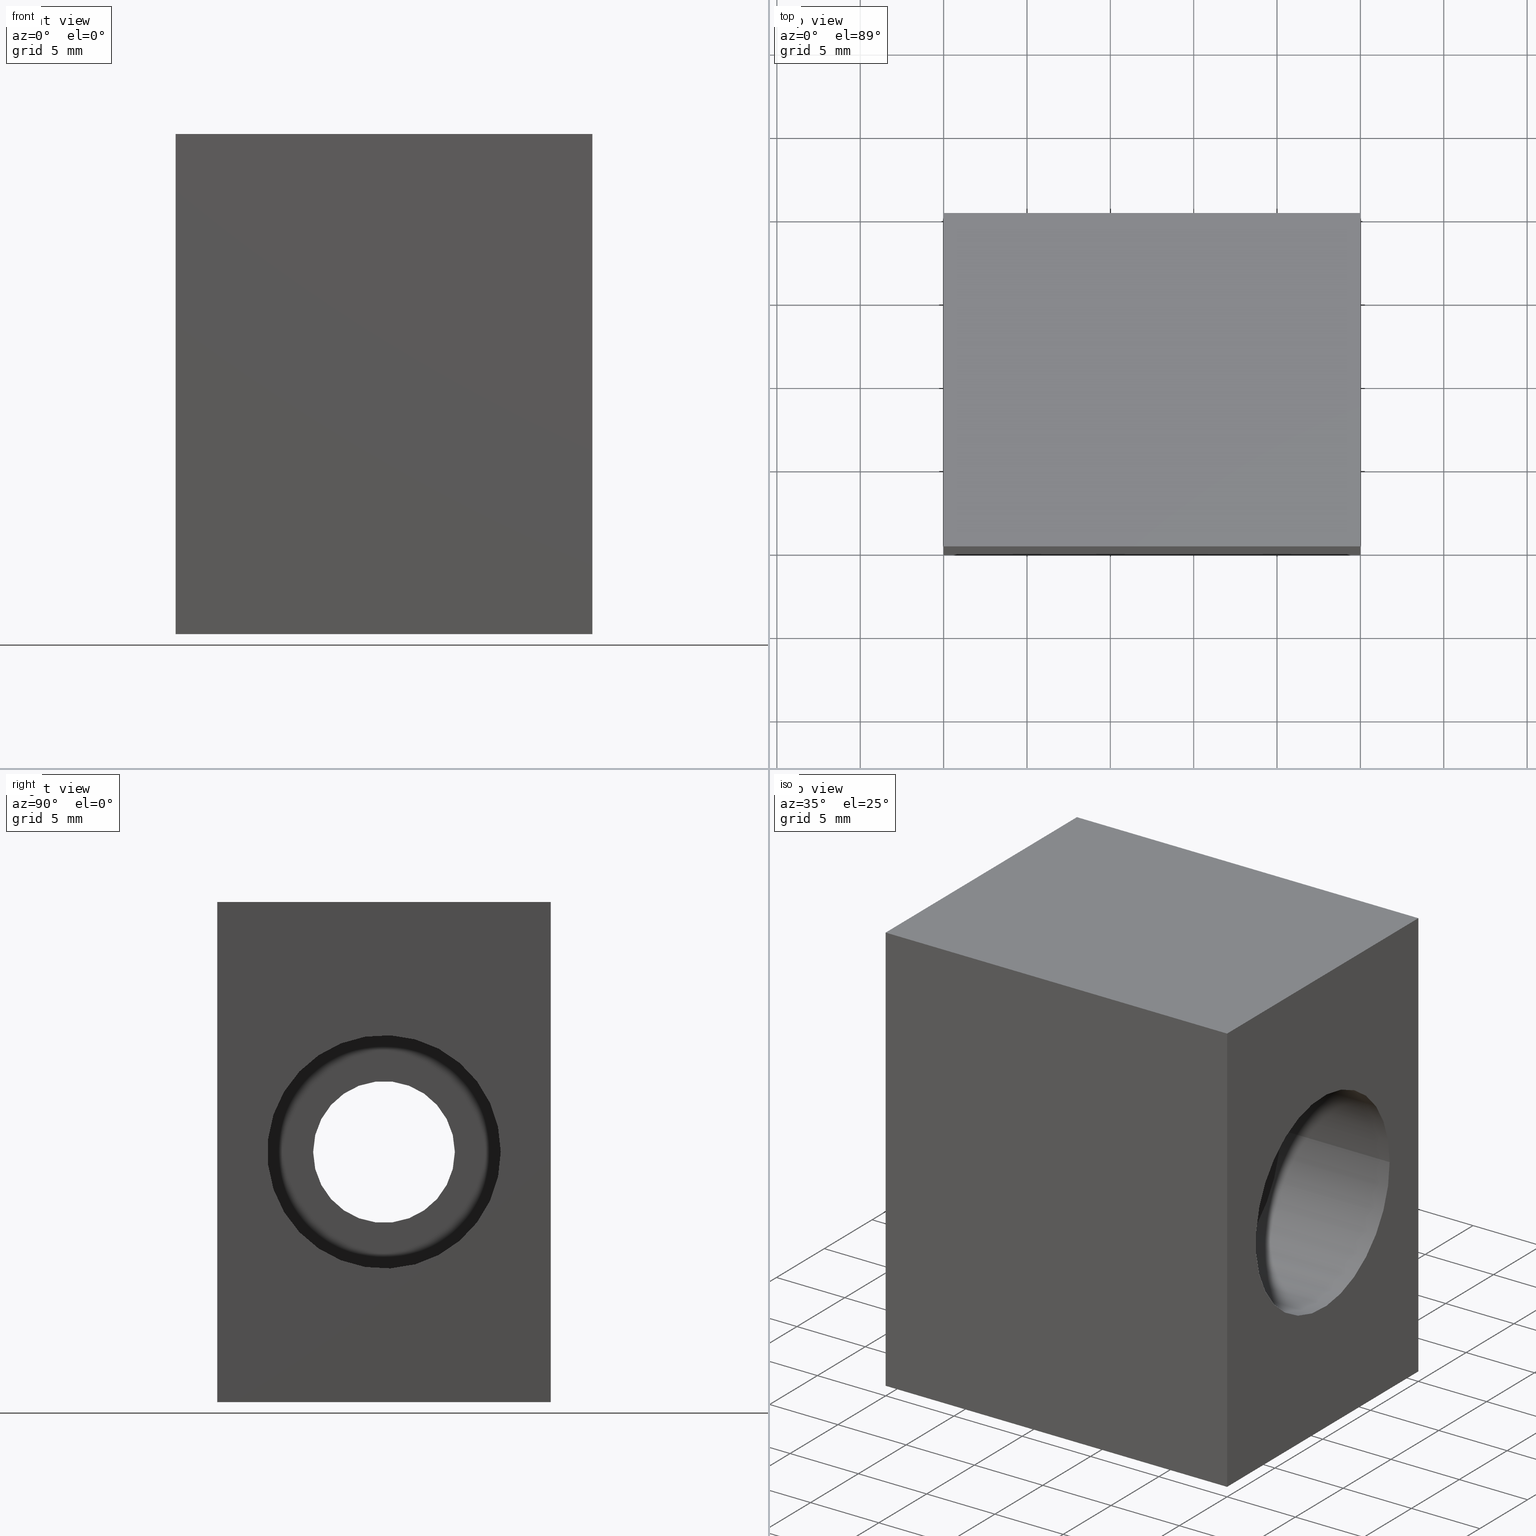
[diagram: canonical four-view strip — front | top / right | iso, engineering-drawing reading convention]
A machine part, canonical four-view strip (front | top / right | iso — engineering-drawing reading convention). The complete STEP part file that produces these views, byte-faithful:
ISO-10303-21;
HEADER;
/* Generated by software containing ST-Developer
 * from STEP Tools, Inc. (www.steptools.com) 
 */

FILE_DESCRIPTION(
/* description */ ('RISCONTRO MAGNETE PORTA ANTA PERIMETRALE'),
/* implementation_level */ '2;1');

FILE_NAME(
/* name */ 
'C:\\Users\\tecnico7\\Desktop\\NUOVI DISEGNI 3D\\DMGRT0000005.stp',
/* time_stamp */ '2022-11-24T08:28:23+01:00',
/* author */ ('tecnico7'),
/* organization */ (''),
/* preprocessor_version */ 'ST-DEVELOPER v18.1',
/* originating_system */ 'Autodesk Inventor 2022',
/* authorisation */ '');

FILE_SCHEMA (('AUTOMOTIVE_DESIGN { 1 0 10303 214 3 1 1 }'));
ENDSEC;

DATA;
#10=MECHANICAL_DESIGN_GEOMETRIC_PRESENTATION_REPRESENTATION('',(#13),#276);
#11=SHAPE_REPRESENTATION_RELATIONSHIP('SRR','None',#283,#12);
#12=ADVANCED_BREP_SHAPE_REPRESENTATION('',(#14),#275);
#13=STYLED_ITEM('',(#292),#14);
#14=MANIFOLD_SOLID_BREP('Importato1',#155);
#15=FACE_BOUND('',#37,.T.);
#16=FACE_BOUND('',#40,.T.);
#17=FACE_BOUND('',#45,.T.);
#18=PLANE('',#184);
#19=PLANE('',#185);
#20=PLANE('',#186);
#21=PLANE('',#187);
#22=PLANE('',#188);
#23=PLANE('',#189);
#24=PLANE('',#190);
#25=FACE_OUTER_BOUND('',#34,.T.);
#26=FACE_OUTER_BOUND('',#35,.T.);
#27=FACE_OUTER_BOUND('',#36,.T.);
#28=FACE_OUTER_BOUND('',#38,.T.);
#29=FACE_OUTER_BOUND('',#39,.T.);
#30=FACE_OUTER_BOUND('',#41,.T.);
#31=FACE_OUTER_BOUND('',#42,.T.);
#32=FACE_OUTER_BOUND('',#43,.T.);
#33=FACE_OUTER_BOUND('',#44,.T.);
#34=EDGE_LOOP('',(#108,#109,#110,#111));
#35=EDGE_LOOP('',(#112,#113,#114,#115));
#36=EDGE_LOOP('',(#116,#117,#118,#119));
#37=EDGE_LOOP('',(#120));
#38=EDGE_LOOP('',(#121,#122,#123,#124));
#39=EDGE_LOOP('',(#125,#126,#127,#128));
#40=EDGE_LOOP('',(#129));
#41=EDGE_LOOP('',(#130,#131,#132,#133));
#42=EDGE_LOOP('',(#134,#135,#136,#137));
#43=EDGE_LOOP('',(#138,#139,#140,#141));
#44=EDGE_LOOP('',(#142));
#45=EDGE_LOOP('',(#143));
#46=LINE('',#238,#60);
#47=LINE('',#244,#61);
#48=LINE('',#249,#62);
#49=LINE('',#251,#63);
#50=LINE('',#253,#64);
#51=LINE('',#254,#65);
#52=LINE('',#257,#66);
#53=LINE('',#259,#67);
#54=LINE('',#260,#68);
#55=LINE('',#263,#69);
#56=LINE('',#265,#70);
#57=LINE('',#266,#71);
#58=LINE('',#268,#72);
#59=LINE('',#269,#73);
#60=VECTOR('',#197,4.25);
#61=VECTOR('',#204,7.);
#62=VECTOR('',#209,20.);
#63=VECTOR('',#210,30.);
#64=VECTOR('',#211,20.);
#65=VECTOR('',#212,30.);
#66=VECTOR('',#215,25.);
#67=VECTOR('',#216,25.);
#68=VECTOR('',#217,30.);
#69=VECTOR('',#220,20.);
#70=VECTOR('',#221,20.);
#71=VECTOR('',#222,30.);
#72=VECTOR('',#225,25.);
#73=VECTOR('',#226,25.);
#74=CIRCLE('',#179,4.25);
#75=CIRCLE('',#180,4.25);
#76=CIRCLE('',#182,7.);
#77=CIRCLE('',#183,7.);
#78=VERTEX_POINT('',#235);
#79=VERTEX_POINT('',#237);
#80=VERTEX_POINT('',#241);
#81=VERTEX_POINT('',#243);
#82=VERTEX_POINT('',#247);
#83=VERTEX_POINT('',#248);
#84=VERTEX_POINT('',#250);
#85=VERTEX_POINT('',#252);
#86=VERTEX_POINT('',#256);
#87=VERTEX_POINT('',#258);
#88=VERTEX_POINT('',#262);
#89=VERTEX_POINT('',#264);
#90=EDGE_CURVE('',#78,#78,#74,.T.);
#91=EDGE_CURVE('',#78,#79,#46,.T.);
#92=EDGE_CURVE('',#79,#79,#75,.T.);
#93=EDGE_CURVE('',#80,#80,#76,.T.);
#94=EDGE_CURVE('',#80,#81,#47,.T.);
#95=EDGE_CURVE('',#81,#81,#77,.T.);
#96=EDGE_CURVE('',#82,#83,#48,.T.);
#97=EDGE_CURVE('',#84,#82,#49,.T.);
#98=EDGE_CURVE('',#84,#85,#50,.T.);
#99=EDGE_CURVE('',#85,#83,#51,.T.);
#100=EDGE_CURVE('',#83,#86,#52,.T.);
#101=EDGE_CURVE('',#85,#87,#53,.T.);
#102=EDGE_CURVE('',#87,#86,#54,.T.);
#103=EDGE_CURVE('',#86,#88,#55,.T.);
#104=EDGE_CURVE('',#87,#89,#56,.T.);
#105=EDGE_CURVE('',#89,#88,#57,.T.);
#106=EDGE_CURVE('',#88,#82,#58,.T.);
#107=EDGE_CURVE('',#89,#84,#59,.T.);
#108=ORIENTED_EDGE('',*,*,#90,.F.);
#109=ORIENTED_EDGE('',*,*,#91,.T.);
#110=ORIENTED_EDGE('',*,*,#92,.T.);
#111=ORIENTED_EDGE('',*,*,#91,.F.);
#112=ORIENTED_EDGE('',*,*,#93,.F.);
#113=ORIENTED_EDGE('',*,*,#94,.T.);
#114=ORIENTED_EDGE('',*,*,#95,.F.);
#115=ORIENTED_EDGE('',*,*,#94,.F.);
#116=ORIENTED_EDGE('',*,*,#96,.F.);
#117=ORIENTED_EDGE('',*,*,#97,.F.);
#118=ORIENTED_EDGE('',*,*,#98,.T.);
#119=ORIENTED_EDGE('',*,*,#99,.T.);
#120=ORIENTED_EDGE('',*,*,#92,.F.);
#121=ORIENTED_EDGE('',*,*,#100,.F.);
#122=ORIENTED_EDGE('',*,*,#99,.F.);
#123=ORIENTED_EDGE('',*,*,#101,.T.);
#124=ORIENTED_EDGE('',*,*,#102,.T.);
#125=ORIENTED_EDGE('',*,*,#103,.F.);
#126=ORIENTED_EDGE('',*,*,#102,.F.);
#127=ORIENTED_EDGE('',*,*,#104,.T.);
#128=ORIENTED_EDGE('',*,*,#105,.T.);
#129=ORIENTED_EDGE('',*,*,#93,.T.);
#130=ORIENTED_EDGE('',*,*,#106,.F.);
#131=ORIENTED_EDGE('',*,*,#105,.F.);
#132=ORIENTED_EDGE('',*,*,#107,.T.);
#133=ORIENTED_EDGE('',*,*,#97,.T.);
#134=ORIENTED_EDGE('',*,*,#98,.F.);
#135=ORIENTED_EDGE('',*,*,#107,.F.);
#136=ORIENTED_EDGE('',*,*,#104,.F.);
#137=ORIENTED_EDGE('',*,*,#101,.F.);
#138=ORIENTED_EDGE('',*,*,#96,.T.);
#139=ORIENTED_EDGE('',*,*,#100,.T.);
#140=ORIENTED_EDGE('',*,*,#103,.T.);
#141=ORIENTED_EDGE('',*,*,#106,.T.);
#142=ORIENTED_EDGE('',*,*,#95,.T.);
#143=ORIENTED_EDGE('',*,*,#90,.T.);
#144=CYLINDRICAL_SURFACE('',#178,4.25);
#145=CYLINDRICAL_SURFACE('',#181,7.);
#146=ADVANCED_FACE('',(#25),#144,.F.);
#147=ADVANCED_FACE('',(#26),#145,.F.);
#148=ADVANCED_FACE('',(#27,#15),#18,.T.);
#149=ADVANCED_FACE('',(#28),#19,.T.);
#150=ADVANCED_FACE('',(#29,#16),#20,.T.);
#151=ADVANCED_FACE('',(#30),#21,.T.);
#152=ADVANCED_FACE('',(#31),#22,.F.);
#153=ADVANCED_FACE('',(#32),#23,.T.);
#154=ADVANCED_FACE('',(#33,#17),#24,.F.);
#155=CLOSED_SHELL('',(#146,#147,#148,#149,#150,#151,#152,#153,#154));
#156=DERIVED_UNIT_ELEMENT(#159,1.);
#157=DERIVED_UNIT_ELEMENT(#278,-3.);
#158=DIMENSIONAL_EXPONENTS(1.,0.,0.,0.,0.,0.,0.);
#159=(
CONVERSION_BASED_UNIT('gram',#161)
MASS_UNIT()
NAMED_UNIT(#158)
);
#160=(
MASS_UNIT()
NAMED_UNIT(*)
SI_UNIT(.KILO.,.GRAM.)
);
#161=MASS_MEASURE_WITH_UNIT(MASS_MEASURE(0.001),#160);
#162=DERIVED_UNIT((#156,#157));
#163=MEASURE_REPRESENTATION_ITEM('density measure',
POSITIVE_RATIO_MEASURE(7.85),#162);
#164=PROPERTY_DEFINITION_REPRESENTATION(#169,#166);
#165=PROPERTY_DEFINITION_REPRESENTATION(#170,#167);
#166=REPRESENTATION('material name',(#168),#275);
#167=REPRESENTATION('density',(#163),#275);
#168=DESCRIPTIVE_REPRESENTATION_ITEM('Acciaio generico (Ferro)',
'Acciaio generico (Ferro)');
#169=PROPERTY_DEFINITION('material property','material name',#285);
#170=PROPERTY_DEFINITION('material property','density of part',#285);
#171=DATE_TIME_ROLE('creation_date');
#172=APPLIED_DATE_AND_TIME_ASSIGNMENT(#173,#171,(#285));
#173=DATE_AND_TIME(#174,#175);
#174=CALENDAR_DATE(2013,11,2);
#175=LOCAL_TIME(0,0,0.,#176);
#176=COORDINATED_UNIVERSAL_TIME_OFFSET(0,0,.BEHIND.);
#177=AXIS2_PLACEMENT_3D('placement',#233,#191,#192);
#178=AXIS2_PLACEMENT_3D('',#234,#193,#194);
#179=AXIS2_PLACEMENT_3D('',#236,#195,#196);
#180=AXIS2_PLACEMENT_3D('',#239,#198,#199);
#181=AXIS2_PLACEMENT_3D('',#240,#200,#201);
#182=AXIS2_PLACEMENT_3D('',#242,#202,#203);
#183=AXIS2_PLACEMENT_3D('',#245,#205,#206);
#184=AXIS2_PLACEMENT_3D('',#246,#207,#208);
#185=AXIS2_PLACEMENT_3D('',#255,#213,#214);
#186=AXIS2_PLACEMENT_3D('',#261,#218,#219);
#187=AXIS2_PLACEMENT_3D('',#267,#223,#224);
#188=AXIS2_PLACEMENT_3D('',#270,#227,#228);
#189=AXIS2_PLACEMENT_3D('',#271,#229,#230);
#190=AXIS2_PLACEMENT_3D('',#272,#231,#232);
#191=DIRECTION('axis',(0.,0.,1.));
#192=DIRECTION('refdir',(1.,0.,0.));
#193=DIRECTION('center_axis',(-1.,0.,0.));
#194=DIRECTION('ref_axis',(0.,-1.,0.));
#195=DIRECTION('center_axis',(-1.,0.,0.));
#196=DIRECTION('ref_axis',(0.,0.,1.));
#197=DIRECTION('',(-1.,0.,0.));
#198=DIRECTION('center_axis',(-1.,0.,0.));
#199=DIRECTION('ref_axis',(0.,0.,1.));
#200=DIRECTION('center_axis',(-1.,0.,0.));
#201=DIRECTION('ref_axis',(0.,-1.,0.));
#202=DIRECTION('center_axis',(-1.,0.,0.));
#203=DIRECTION('ref_axis',(0.,0.,-1.));
#204=DIRECTION('',(-1.,0.,0.));
#205=DIRECTION('center_axis',(1.,0.,0.));
#206=DIRECTION('ref_axis',(0.,0.,-1.));
#207=DIRECTION('center_axis',(-1.,0.,0.));
#208=DIRECTION('ref_axis',(0.,0.,1.));
#209=DIRECTION('',(0.,-1.,0.));
#210=DIRECTION('',(0.,0.,1.));
#211=DIRECTION('',(0.,-1.,0.));
#212=DIRECTION('',(0.,0.,1.));
#213=DIRECTION('center_axis',(0.,-1.,0.));
#214=DIRECTION('ref_axis',(0.,0.,-1.));
#215=DIRECTION('',(1.,0.,0.));
#216=DIRECTION('',(1.,0.,0.));
#217=DIRECTION('',(0.,0.,1.));
#218=DIRECTION('center_axis',(1.,0.,0.));
#219=DIRECTION('ref_axis',(0.,0.,-1.));
#220=DIRECTION('',(0.,1.,0.));
#221=DIRECTION('',(0.,1.,0.));
#222=DIRECTION('',(0.,0.,1.));
#223=DIRECTION('center_axis',(0.,1.,0.));
#224=DIRECTION('ref_axis',(0.,0.,1.));
#225=DIRECTION('',(-1.,0.,0.));
#226=DIRECTION('',(-1.,0.,0.));
#227=DIRECTION('center_axis',(0.,0.,1.));
#228=DIRECTION('ref_axis',(1.,0.,0.));
#229=DIRECTION('center_axis',(0.,0.,1.));
#230=DIRECTION('ref_axis',(1.,0.,0.));
#231=DIRECTION('center_axis',(-1.,0.,0.));
#232=DIRECTION('ref_axis',(0.,0.,1.));
#233=CARTESIAN_POINT('',(0.,0.,0.));
#234=CARTESIAN_POINT('Origin',(-7.99999999000001,1.776357E-15,0.));
#235=CARTESIAN_POINT('',(-8.00000000000001,4.25,-5.20474889637625E-16));
#236=CARTESIAN_POINT('Origin',(-8.00000000000001,3.552714E-15,0.));
#237=CARTESIAN_POINT('',(-25.,4.25,-5.20474889637625E-16));
#238=CARTESIAN_POINT('',(-7.99999999000001,4.25,-5.20474889637625E-16));
#239=CARTESIAN_POINT('Origin',(-25.,3.552714E-15,0.));
#240=CARTESIAN_POINT('Origin',(1.E-8,1.776357E-15,0.));
#241=CARTESIAN_POINT('',(0.,7.00000000000001,-8.57252759403148E-16));
#242=CARTESIAN_POINT('Origin',(0.,0.,0.));
#243=CARTESIAN_POINT('',(-8.00000000000001,7.00000000000001,-8.57252759403148E-16));
#244=CARTESIAN_POINT('',(1.E-8,7.00000000000001,-8.57252759403148E-16));
#245=CARTESIAN_POINT('Origin',(-8.00000000000001,0.,0.));
#246=CARTESIAN_POINT('Origin',(-25.,-11.,-16.5));
#247=CARTESIAN_POINT('',(-25.,10.,15.));
#248=CARTESIAN_POINT('',(-25.,-10.,15.));
#249=CARTESIAN_POINT('',(-25.,10.,15.));
#250=CARTESIAN_POINT('',(-25.,10.,-15.));
#251=CARTESIAN_POINT('',(-25.,10.,-15.));
#252=CARTESIAN_POINT('',(-25.,-10.,-15.));
#253=CARTESIAN_POINT('',(-25.,10.,-15.));
#254=CARTESIAN_POINT('',(-25.,-10.,-15.));
#255=CARTESIAN_POINT('Origin',(-26.25,-10.,16.5));
#256=CARTESIAN_POINT('',(0.,-10.,15.));
#257=CARTESIAN_POINT('',(-25.,-10.,15.));
#258=CARTESIAN_POINT('',(0.,-10.,-15.));
#259=CARTESIAN_POINT('',(-25.,-10.,-15.));
#260=CARTESIAN_POINT('',(0.,-10.,-15.));
#261=CARTESIAN_POINT('Origin',(0.,-11.,16.5));
#262=CARTESIAN_POINT('',(0.,10.,15.));
#263=CARTESIAN_POINT('',(0.,-10.,15.));
#264=CARTESIAN_POINT('',(0.,10.,-15.));
#265=CARTESIAN_POINT('',(0.,-10.,-15.));
#266=CARTESIAN_POINT('',(0.,10.,-15.));
#267=CARTESIAN_POINT('Origin',(-26.25,10.,-16.5));
#268=CARTESIAN_POINT('',(0.,10.,15.));
#269=CARTESIAN_POINT('',(0.,10.,-15.));
#270=CARTESIAN_POINT('Origin',(-26.25,-11.,-15.));
#271=CARTESIAN_POINT('Origin',(-26.25,-11.,15.));
#272=CARTESIAN_POINT('Origin',(-8.00000000000001,-7.7,-7.7));
#273=UNCERTAINTY_MEASURE_WITH_UNIT(LENGTH_MEASURE(0.01),#277,
'DISTANCE_ACCURACY_VALUE',
'Maximum model space distance between geometric entities at asserted c
onnectivities');
#274=UNCERTAINTY_MEASURE_WITH_UNIT(LENGTH_MEASURE(0.01),#277,
'DISTANCE_ACCURACY_VALUE',
'Maximum model space distance between geometric entities at asserted c
onnectivities');
#275=(
GEOMETRIC_REPRESENTATION_CONTEXT(3)
GLOBAL_UNCERTAINTY_ASSIGNED_CONTEXT((#273))
GLOBAL_UNIT_ASSIGNED_CONTEXT((#277,#279,#280))
REPRESENTATION_CONTEXT('','3D')
);
#276=(
GEOMETRIC_REPRESENTATION_CONTEXT(3)
GLOBAL_UNCERTAINTY_ASSIGNED_CONTEXT((#274))
GLOBAL_UNIT_ASSIGNED_CONTEXT((#277,#279,#280))
REPRESENTATION_CONTEXT('','3D')
);
#277=(
LENGTH_UNIT()
NAMED_UNIT(*)
SI_UNIT(.MILLI.,.METRE.)
);
#278=(
LENGTH_UNIT()
NAMED_UNIT(*)
SI_UNIT(.CENTI.,.METRE.)
);
#279=(
NAMED_UNIT(*)
PLANE_ANGLE_UNIT()
SI_UNIT($,.RADIAN.)
);
#280=(
NAMED_UNIT(*)
SI_UNIT($,.STERADIAN.)
SOLID_ANGLE_UNIT()
);
#281=SHAPE_DEFINITION_REPRESENTATION(#282,#283);
#282=PRODUCT_DEFINITION_SHAPE('',$,#285);
#283=SHAPE_REPRESENTATION('',(#177),#275);
#284=PRODUCT_DEFINITION_CONTEXT('part definition',#289,'design');
#285=PRODUCT_DEFINITION('DMGRT0000005','DMGRT0000005',#286,#284);
#286=PRODUCT_DEFINITION_FORMATION('C',$,#291);
#287=PRODUCT_RELATED_PRODUCT_CATEGORY('DMGRT0000005','DMGRT0000005',(#291));
#288=APPLICATION_PROTOCOL_DEFINITION('international standard',
'automotive_design',2009,#289);
#289=APPLICATION_CONTEXT(
'Core Data for Automotive Mechanical Design Process');
#290=PRODUCT_CONTEXT('part definition',#289,'mechanical');
#291=PRODUCT('DMGRT0000005','DMGRT0000005',
'RISCONTRO MAGNETE PORTA ANTA PERIMETRALE',(#290));
#292=PRESENTATION_STYLE_ASSIGNMENT((#293));
#293=SURFACE_STYLE_USAGE(.BOTH.,#296);
#294=SURFACE_STYLE_RENDERING_WITH_PROPERTIES($,#300,(#295));
#295=SURFACE_STYLE_TRANSPARENT(0.);
#296=SURFACE_SIDE_STYLE('',(#297,#294));
#297=SURFACE_STYLE_FILL_AREA(#298);
#298=FILL_AREA_STYLE('',(#299));
#299=FILL_AREA_STYLE_COLOUR('',#300);
#300=COLOUR_RGB('',0.63921568627451,0.63921568627451,0.662745098039216);
ENDSEC;
END-ISO-10303-21;
